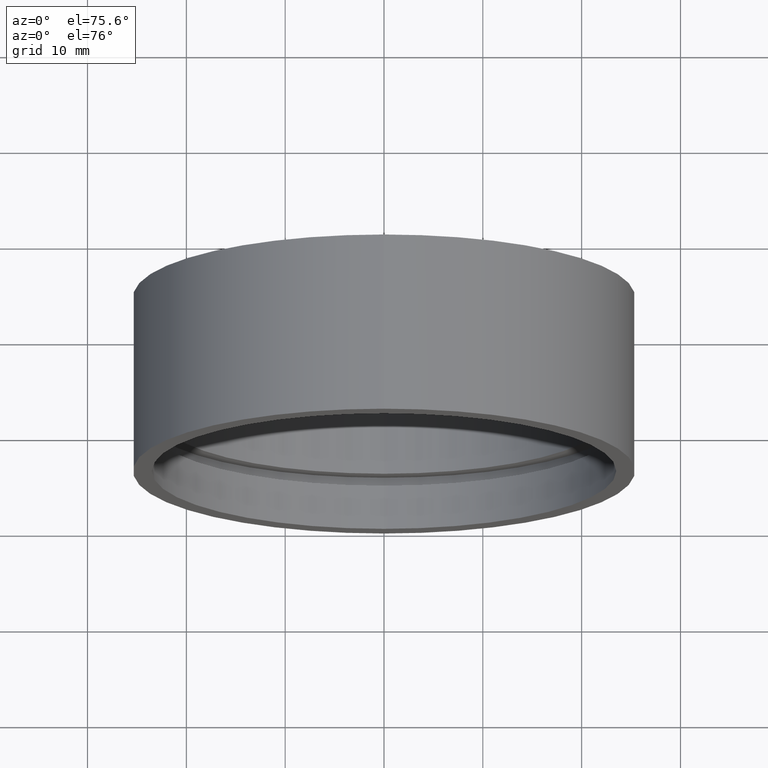
[diagram: clean part render]
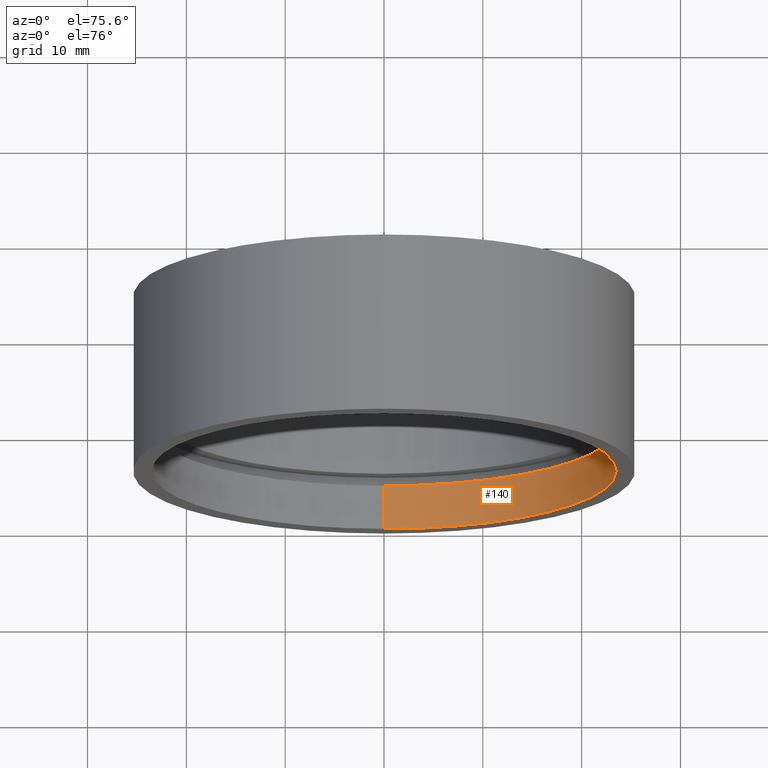
[diagram: same view with one face highlighted and labeled with its STEP entity id]
A machine part, auxiliary view. The second image highlights one B-rep face of the part: STEP entity #140.
In plain terms, the highlighted cylindrical surface (partial cylindrical patch) has radius 23.5 mm, axis along (-0, 1, -0).
Its self-contained STEP definition (entity closure, byte-faithful):
#38 = VECTOR ( 'NONE', #504, 1000.000000000000000 ) ;
#46 = CARTESIAN_POINT ( 'NONE',  ( 2.877919977996282700E-015, -2.775557561562891400E-014, -23.50000000000002100 ) ) ;
#47 = EDGE_LOOP ( 'NONE', ( #169, #466, #472, #99 ) ) ;
#59 = VECTOR ( 'NONE', #217, 1000.000000000000000 ) ;
#61 = EDGE_CURVE ( 'NONE', #465, #135, #593, .T. ) ;
#74 = AXIS2_PLACEMENT_3D ( 'NONE', #535, #587, #355 ) ;
#99 = ORIENTED_EDGE ( 'NONE', *, *, #61, .T. ) ;
#113 = CARTESIAN_POINT ( 'NONE',  ( 0.0000000000000000000, 4.499999999999976000, 0.0000000000000000000 ) ) ;
#119 = DIRECTION ( 'NONE',  ( 0.0000000000000000000, 0.0000000000000000000, 1.000000000000000000 ) ) ;
#132 = EDGE_CURVE ( 'NONE', #425, #460, #417, .T. ) ;
#135 = VERTEX_POINT ( 'NONE', #548 ) ;
#140 = ADVANCED_FACE ( 'NONE', ( #383 ), #453, .F. ) ;
#169 = ORIENTED_EDGE ( 'NONE', *, *, #512, .F. ) ;
#187 = CARTESIAN_POINT ( 'NONE',  ( 0.0000000000000000000, 4.499999999999976000, 23.50000000000002100 ) ) ;
#200 = LINE ( 'NONE', #259, #59 ) ;
#201 = AXIS2_PLACEMENT_3D ( 'NONE', #113, #449, #119 ) ;
#215 = DIRECTION ( 'NONE',  ( 0.0000000000000000000, 0.0000000000000000000, 1.000000000000000000 ) ) ;
#217 = DIRECTION ( 'NONE',  ( -0.0000000000000000000, 1.000000000000000000, -0.0000000000000000000 ) ) ;
#221 = CARTESIAN_POINT ( 'NONE',  ( 0.0000000000000000000, -2.775557561562891400E-014, 23.50000000000002100 ) ) ;
#259 = CARTESIAN_POINT ( 'NONE',  ( 2.877919977996282700E-015, 161.3761669434274500, -23.50000000000002100 ) ) ;
#261 = CARTESIAN_POINT ( 'NONE',  ( 0.0000000000000000000, 161.3761669434274500, 0.0000000000000000000 ) ) ;
#271 = CARTESIAN_POINT ( 'NONE',  ( 0.0000000000000000000, 161.3761669434274500, 23.50000000000002100 ) ) ;
#332 = LINE ( 'NONE', #271, #38 ) ;
#355 = DIRECTION ( 'NONE',  ( 0.0000000000000000000, 0.0000000000000000000, 1.000000000000000000 ) ) ;
#383 = FACE_OUTER_BOUND ( 'NONE', #47, .T. ) ;
#385 = AXIS2_PLACEMENT_3D ( 'NONE', #261, #402, #215 ) ;
#402 = DIRECTION ( 'NONE',  ( -0.0000000000000000000, 1.000000000000000000, -0.0000000000000000000 ) ) ;
#417 = CIRCLE ( 'NONE', #74, 23.50000000000002100 ) ;
#425 = VERTEX_POINT ( 'NONE', #221 ) ;
#449 = DIRECTION ( 'NONE',  ( -0.0000000000000000000, 1.000000000000000000, -0.0000000000000000000 ) ) ;
#453 = CYLINDRICAL_SURFACE ( 'NONE', #385, 23.50000000000002100 ) ;
#460 = VERTEX_POINT ( 'NONE', #46 ) ;
#465 = VERTEX_POINT ( 'NONE', #187 ) ;
#466 = ORIENTED_EDGE ( 'NONE', *, *, #132, .F. ) ;
#472 = ORIENTED_EDGE ( 'NONE', *, *, #621, .T. ) ;
#504 = DIRECTION ( 'NONE',  ( -0.0000000000000000000, 1.000000000000000000, -0.0000000000000000000 ) ) ;
#512 = EDGE_CURVE ( 'NONE', #460, #135, #200, .T. ) ;
#535 = CARTESIAN_POINT ( 'NONE',  ( 0.0000000000000000000, -2.775557561562891400E-014, 0.0000000000000000000 ) ) ;
#548 = CARTESIAN_POINT ( 'NONE',  ( 2.877919977996282700E-015, 4.499999999999976000, -23.50000000000002100 ) ) ;
#587 = DIRECTION ( 'NONE',  ( -0.0000000000000000000, 1.000000000000000000, -0.0000000000000000000 ) ) ;
#593 = CIRCLE ( 'NONE', #201, 23.50000000000002100 ) ;
#621 = EDGE_CURVE ( 'NONE', #425, #465, #332, .T. ) ;